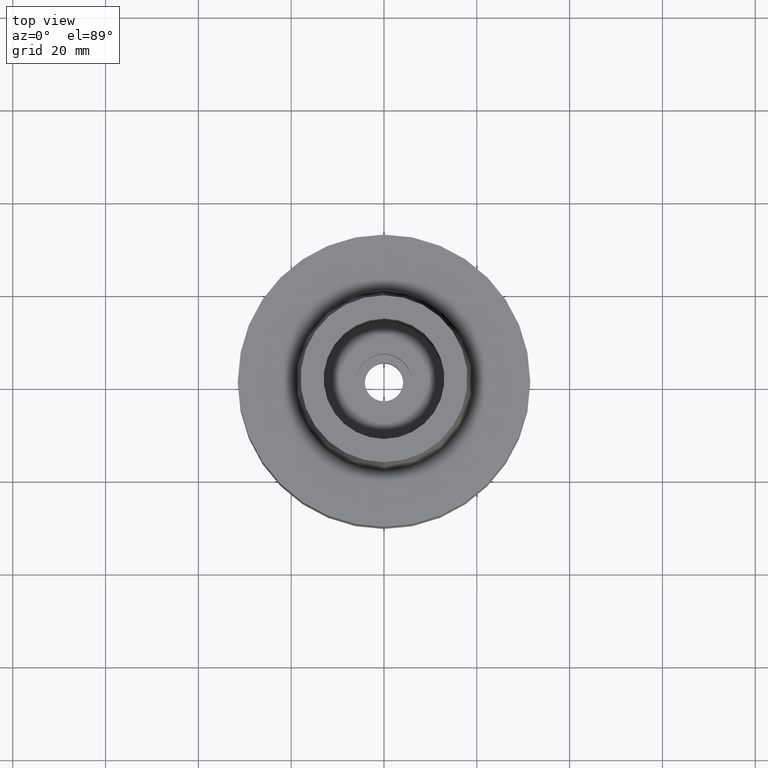
[diagram: clean part render]
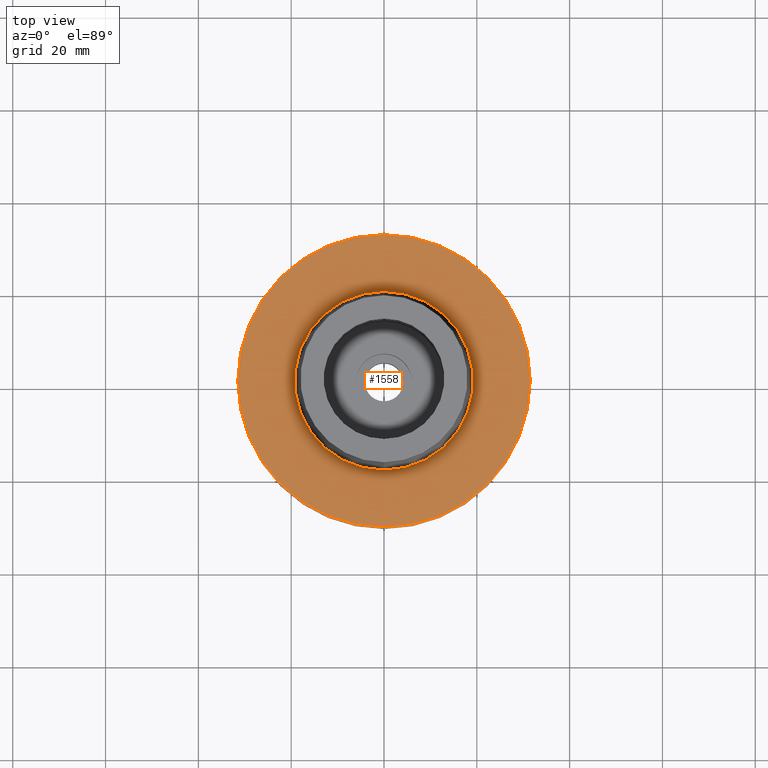
[diagram: same view with one face highlighted and labeled with its STEP entity id]
A machine part, top view. The second image highlights one B-rep face of the part: STEP entity #1558.
In plain terms, the highlighted planar face has unit normal (0, 0, 1).
Its self-contained STEP definition (entity closure, byte-faithful):
#10 = CIRCLE ( 'NONE', #382, 31.50000000000000000 ) ;
#83 = CARTESIAN_POINT ( 'NONE',  ( 0.0000000000000000000, 19.24999954280000125, 3.410605131648000255E-13 ) ) ;
#156 = CARTESIAN_POINT ( 'NONE',  ( 0.0000000000000000000, 0.0000000000000000000, 1.278976924367999843E-13 ) ) ;
#254 = VERTEX_POINT ( 'NONE', #2448 ) ;
#347 = CARTESIAN_POINT ( 'NONE',  ( 0.0000000000000000000, 0.0000000000000000000, 5.115907697473000027E-13 ) ) ;
#371 = DIRECTION ( 'NONE',  ( 0.0000000000000000000, -1.000000000000000000, 0.0000000000000000000 ) ) ;
#382 = AXIS2_PLACEMENT_3D ( 'NONE', #156, #2806, #2582 ) ;
#393 = DIRECTION ( 'NONE',  ( 0.0000000000000000000, 0.0000000000000000000, 1.000000000000000000 ) ) ;
#395 = VERTEX_POINT ( 'NONE', #633 ) ;
#466 = EDGE_CURVE ( 'NONE', #395, #1478, #10, .T. ) ;
#509 = VERTEX_POINT ( 'NONE', #83 ) ;
#515 = EDGE_LOOP ( 'NONE', ( #2756, #617 ) ) ;
#527 = ORIENTED_EDGE ( 'NONE', *, *, #2464, .F. ) ;
#560 = CARTESIAN_POINT ( 'NONE',  ( 0.0000000000000000000, 0.0000000000000000000, 5.115907697473000027E-13 ) ) ;
#617 = ORIENTED_EDGE ( 'NONE', *, *, #1668, .F. ) ;
#633 = CARTESIAN_POINT ( 'NONE',  ( 0.0000000000000000000, 31.50000000000000000, 1.278976924367999843E-13 ) ) ;
#642 = PLANE ( 'NONE',  #2593 ) ;
#845 = AXIS2_PLACEMENT_3D ( 'NONE', #347, #393, #2800 ) ;
#1108 = CARTESIAN_POINT ( 'NONE',  ( 0.0000000000000000000, 0.0000000000000000000, 0.0000000000000000000 ) ) ;
#1151 = DIRECTION ( 'NONE',  ( 0.0000000000000000000, 0.0000000000000000000, -1.000000000000000000 ) ) ;
#1217 = CIRCLE ( 'NONE', #2592, 19.24999954280000125 ) ;
#1358 = CIRCLE ( 'NONE', #845, 19.24999954280000125 ) ;
#1360 = ORIENTED_EDGE ( 'NONE', *, *, #1820, .F. ) ;
#1404 = CIRCLE ( 'NONE', #1947, 31.50000000000000000 ) ;
#1478 = VERTEX_POINT ( 'NONE', #2859 ) ;
#1552 = DIRECTION ( 'NONE',  ( 1.000000000000000000, 0.0000000000000000000, 0.0000000000000000000 ) ) ;
#1558 = ADVANCED_FACE ( 'NONE', ( #2618, #2192 ), #642, .T. ) ;
#1668 = EDGE_CURVE ( 'NONE', #1478, #395, #1404, .T. ) ;
#1820 = EDGE_CURVE ( 'NONE', #509, #254, #1358, .T. ) ;
#1947 = AXIS2_PLACEMENT_3D ( 'NONE', #2244, #1151, #2005 ) ;
#1981 = DIRECTION ( 'NONE',  ( 0.0000000000000000000, 0.0000000000000000000, 1.000000000000000000 ) ) ;
#2005 = DIRECTION ( 'NONE',  ( 0.0000000000000000000, -1.000000000000000000, 0.0000000000000000000 ) ) ;
#2192 = FACE_BOUND ( 'NONE', #2783, .T. ) ;
#2244 = CARTESIAN_POINT ( 'NONE',  ( 0.0000000000000000000, 0.0000000000000000000, 1.278976924367999843E-13 ) ) ;
#2448 = CARTESIAN_POINT ( 'NONE',  ( 0.0000000000000000000, -19.24999954280000125, 3.410605131648000255E-13 ) ) ;
#2464 = EDGE_CURVE ( 'NONE', #254, #509, #1217, .T. ) ;
#2582 = DIRECTION ( 'NONE',  ( 0.0000000000000000000, 1.000000000000000000, 0.0000000000000000000 ) ) ;
#2588 = DIRECTION ( 'NONE',  ( 0.0000000000000000000, 0.0000000000000000000, 1.000000000000000000 ) ) ;
#2592 = AXIS2_PLACEMENT_3D ( 'NONE', #560, #2588, #371 ) ;
#2593 = AXIS2_PLACEMENT_3D ( 'NONE', #1108, #1981, #1552 ) ;
#2618 = FACE_OUTER_BOUND ( 'NONE', #515, .T. ) ;
#2756 = ORIENTED_EDGE ( 'NONE', *, *, #466, .F. ) ;
#2783 = EDGE_LOOP ( 'NONE', ( #1360, #527 ) ) ;
#2800 = DIRECTION ( 'NONE',  ( 0.0000000000000000000, 1.000000000000000000, 0.0000000000000000000 ) ) ;
#2806 = DIRECTION ( 'NONE',  ( 0.0000000000000000000, 0.0000000000000000000, -1.000000000000000000 ) ) ;
#2859 = CARTESIAN_POINT ( 'NONE',  ( 0.0000000000000000000, -31.50000000000000000, 1.278976924367999843E-13 ) ) ;